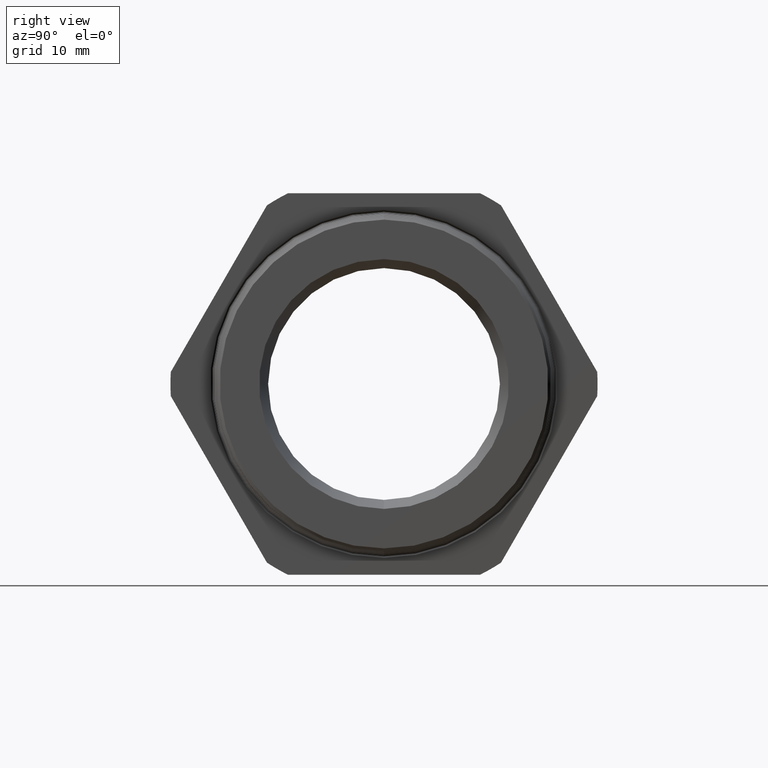
[diagram: clean part render]
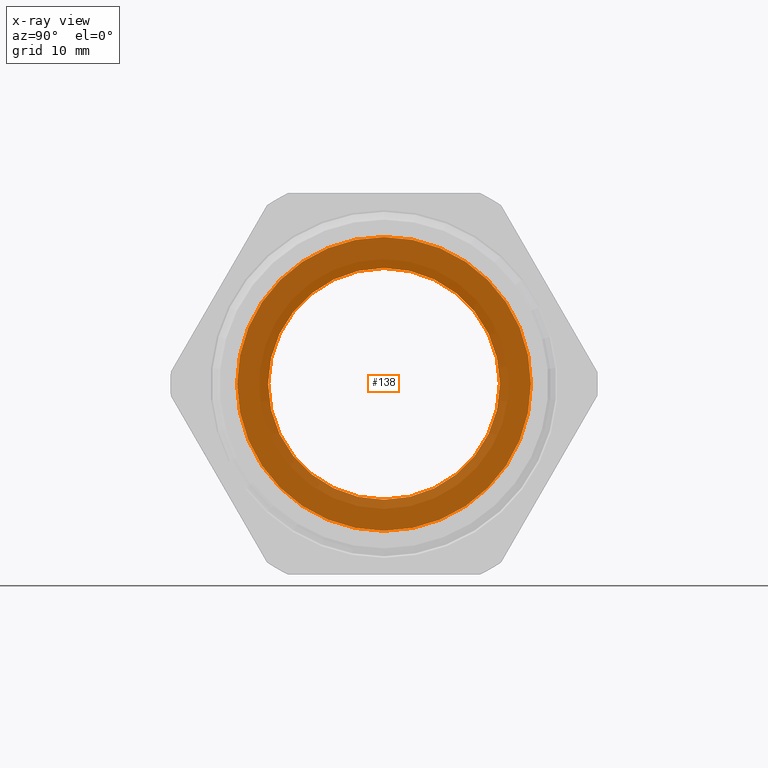
[diagram: x-ray — body ghosted, one internal face saturated and labeled with its STEP entity id]
A machine part, right view, then the same camera in x-ray: the body is ghosted and one INTERNAL B-rep face — a face not visible from any outside direction — is saturated and labeled: STEP entity #138.
In plain terms, the highlighted planar face has unit normal (1, 0, 0).
Its self-contained STEP definition (entity closure, byte-faithful):
#138 = ADVANCED_FACE ( 'NONE', ( #1059, #1058 ), #1057, .F. ) ;
#139 = EDGE_LOOP ( 'NONE', ( #140, #141 ) ) ;
#140 = ORIENTED_EDGE ( 'NONE', *, *, #162, .F. ) ;
#141 = ORIENTED_EDGE ( 'NONE', *, *, #3884, .F. ) ;
#142 = EDGE_LOOP ( 'NONE', ( #143, #145 ) ) ;
#143 = ORIENTED_EDGE ( 'NONE', *, *, #144, .T. ) ;
#144 = EDGE_CURVE ( 'NONE', #3639, #3794, #1052, .T. ) ;
#145 = ORIENTED_EDGE ( 'NONE', *, *, #3802, .T. ) ;
#162 = EDGE_CURVE ( 'NONE', #3895, #3845, #1033, .T. ) ;
#1033 = CIRCLE ( 'NONE', #1099, 0.5500000000000000400 ) ;
#1048 = DIRECTION ( 'NONE',  ( 0.0000000000000000000, 0.0000000000000000000, 1.000000000000000000 ) ) ;
#1049 = DIRECTION ( 'NONE',  ( -1.000000000000000000, 0.0000000000000000000, 0.0000000000000000000 ) ) ;
#1050 = CARTESIAN_POINT ( 'NONE',  ( -1.106250000000000200, 0.0000000000000000000, 0.0000000000000000000 ) ) ;
#1051 = AXIS2_PLACEMENT_3D ( 'NONE', #1050, #1049, #1048 ) ;
#1052 = CIRCLE ( 'NONE', #1051, 0.6969999999999999500 ) ;
#1053 = DIRECTION ( 'NONE',  ( 0.0000000000000000000, 0.0000000000000000000, -1.000000000000000000 ) ) ;
#1054 = DIRECTION ( 'NONE',  ( 1.000000000000000000, 0.0000000000000000000, 0.0000000000000000000 ) ) ;
#1055 = CARTESIAN_POINT ( 'NONE',  ( -1.106250000000000200, 0.6969999999999999500, 0.0000000000000000000 ) ) ;
#1056 = AXIS2_PLACEMENT_3D ( 'NONE', #1055, #1054, #1053 ) ;
#1057 = PLANE ( 'NONE',  #1056 ) ;
#1058 = FACE_OUTER_BOUND ( 'NONE', #142, .T. ) ;
#1059 = FACE_BOUND ( 'NONE', #139, .T. ) ;
#1096 = DIRECTION ( 'NONE',  ( 0.0000000000000000000, 0.0000000000000000000, 1.000000000000000000 ) ) ;
#1097 = DIRECTION ( 'NONE',  ( -1.000000000000000000, 0.0000000000000000000, 0.0000000000000000000 ) ) ;
#1098 = CARTESIAN_POINT ( 'NONE',  ( -1.106250000000000200, 0.0000000000000000000, 0.0000000000000000000 ) ) ;
#1099 = AXIS2_PLACEMENT_3D ( 'NONE', #1098, #1097, #1096 ) ;
#2555 = CARTESIAN_POINT ( 'NONE',  ( -1.106250000000000200, 0.0000000000000000000, 0.6969999999999999500 ) ) ;
#2882 = DIRECTION ( 'NONE',  ( 0.0000000000000000000, 0.0000000000000000000, 1.000000000000000000 ) ) ;
#2883 = DIRECTION ( 'NONE',  ( -1.000000000000000000, 0.0000000000000000000, 0.0000000000000000000 ) ) ;
#2884 = CARTESIAN_POINT ( 'NONE',  ( -1.106250000000000200, 0.0000000000000000000, 0.0000000000000000000 ) ) ;
#2885 = AXIS2_PLACEMENT_3D ( 'NONE', #2884, #2883, #2882 ) ;
#2886 = CIRCLE ( 'NONE', #2885, 0.6969999999999999500 ) ;
#2895 = CARTESIAN_POINT ( 'NONE',  ( -1.106250000000000200, 8.535788190057050200E-017, -0.6969999999999999500 ) ) ;
#2936 = CARTESIAN_POINT ( 'NONE',  ( -1.106250000000000200, 6.735557395310443700E-017, -0.5500000000000000400 ) ) ;
#3032 = CARTESIAN_POINT ( 'NONE',  ( -1.106250000000000200, 0.0000000000000000000, 0.5500000000000000400 ) ) ;
#3049 = DIRECTION ( 'NONE',  ( 0.0000000000000000000, 0.0000000000000000000, 1.000000000000000000 ) ) ;
#3050 = DIRECTION ( 'NONE',  ( -1.000000000000000000, 0.0000000000000000000, 0.0000000000000000000 ) ) ;
#3051 = CARTESIAN_POINT ( 'NONE',  ( -1.106250000000000200, 0.0000000000000000000, 0.0000000000000000000 ) ) ;
#3052 = AXIS2_PLACEMENT_3D ( 'NONE', #3051, #3050, #3049 ) ;
#3053 = CIRCLE ( 'NONE', #3052, 0.5500000000000000400 ) ;
#3639 = VERTEX_POINT ( 'NONE', #2555 ) ;
#3794 = VERTEX_POINT ( 'NONE', #2895 ) ;
#3802 = EDGE_CURVE ( 'NONE', #3794, #3639, #2886, .T. ) ;
#3845 = VERTEX_POINT ( 'NONE', #2936 ) ;
#3884 = EDGE_CURVE ( 'NONE', #3845, #3895, #3053, .T. ) ;
#3895 = VERTEX_POINT ( 'NONE', #3032 ) ;